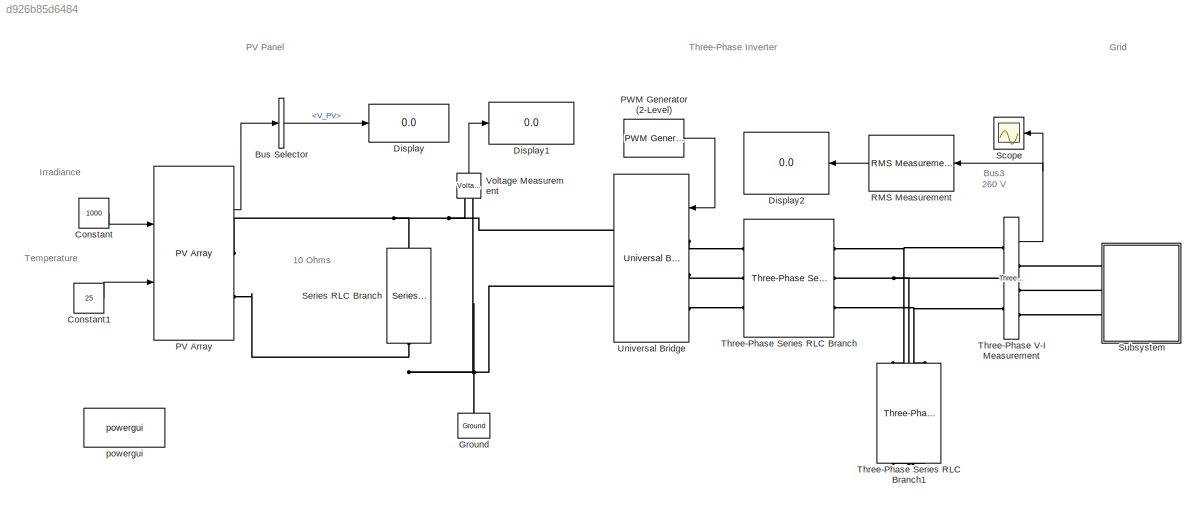
MODEL slx_d926b85d6484
KIND model
CONFIG AbsTol = auto
CONFIG EnableMultiTasking = off
CONFIG FixedStep = auto
CONFIG MaxStep = auto
CONFIG MinStep = auto
CONFIG RelTol = 1e-3
CONFIG SampleTimeConstraint = Unconstrained
CONFIG Solver = VariableStepAuto
CONFIG SolverName = VariableStepAuto
CONFIG StartTime = 0.0
CONFIG StopTime = 1
BLOCK [BusSelector] Bus Selector
  OutputSignals = V_PV
  Ports = [1, 1]
BLOCK [Constant] Constant
  Value = 1000
BLOCK [Constant] Constant1
  Value = 25
BLOCK [Display] Display
  Decimation = 1
  Ports = [1]
BLOCK [Display] Display1
  Decimation = 1
  NameLocation = top
  Ports = [1]
BLOCK [Display] Display2
  Decimation = 1
  Ports = [1]
BLOCK [Reference] Ground  REF=powerlib/Elements/Ground
  AttributesFormatString = \n
  NameLocation = left
  Ports = [0, 0, 0, 0, 0, 1]
  SourceBlock = powerlib/Elements/Ground
  SourceProductBaseCode = MT,PS
  SourceType = Ground
BLOCK [Reference] PV Array  REF=re_lib/Solar/PV Array
  Ports = [2, 1, 0, 0, 0, 0, 2]
  SourceBlock = re_lib/Solar/PV Array
  SourceProductBaseCode = PS
  SourceType = PV array
BLOCK [Reference] PWM Generator (2-Level)  REF=powerlib_meascontrol/Pulse & Signal
Generators/PWM Generator
(2-Level)
  NameLocation = top
  Ports = [0, 1]
  SourceBlock = powerlib_meascontrol/Pulse & Signal\nGenerators/PWM Generator\n(2-Level)
  SourceProductBaseCode = PS
  SourceType = PWM Generator (2-Level)
BLOCK [Reference] RMS Measurement  REF=eeRmsMeasurement/RMS
Measurement
  Ports = [1, 1]
  SourceBlock = eeRmsMeasurement/RMS\nMeasurement
  SourceProductBaseCode = PS
  SourceType = RMS Measurement
BLOCK [Scope] Scope
  Floating = off
  NameLocation = top
  NumInputPorts = 1
  Ports = [1]
  ScopeSpecificationString = Simulink.scopes.TimeScopeBlockCfg('CurrentConfiguration', extmgr.ConfigurationSet(extmgr.Configuration('Core','General UI',true),extmgr.Configuration('Core','Source UI',true),extmgr.Configuration('Sources','WiredSimulink',true),extmgr.Configuration('Visuals','Time Domain',true,'SerializedDisplays',{struct('MinYLimReal','-307.34398','MaxYLimReal','702.93303','YLabelReal','','MinYLimMag',' 0.00000',...<+1499ch>
BLOCK [Reference] Series RLC Branch  REF=powerlib/Elements/Series RLC Branch
  NameLocation = left
  Ports = [0, 0, 0, 0, 0, 1, 1]
  SourceBlock = powerlib/Elements/Series RLC Branch
  SourceProductBaseCode = PS
  SourceType = Series RLC Branch
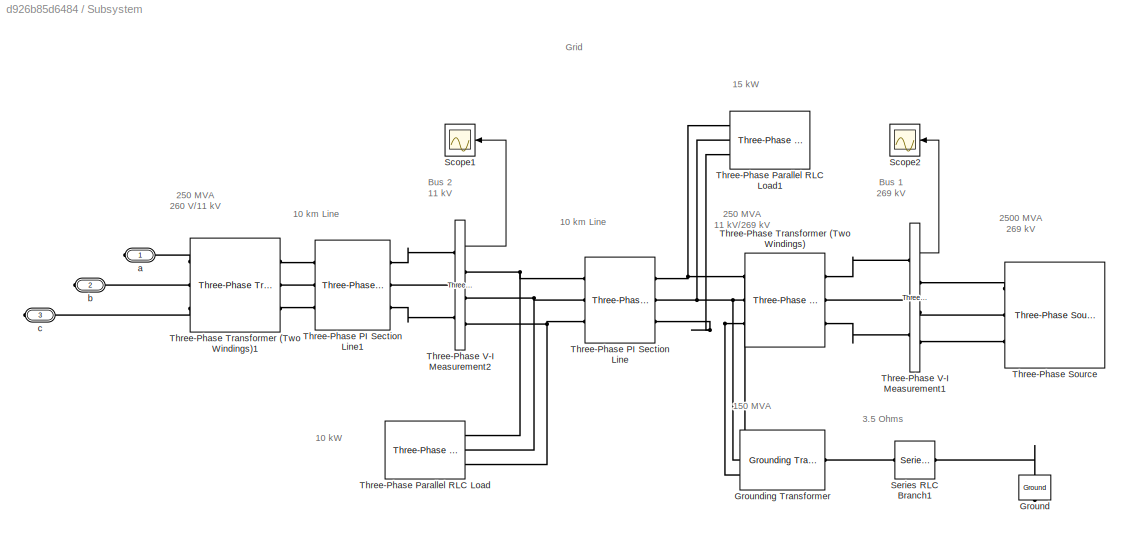
BLOCK [SubSystem] Subsystem
  Ports = [0, 0, 0, 0, 0, 0, 3]
  RequestExecContextInheritance = off
BLOCK [Reference] Subsystem/Ground  REF=powerlib/Elements/Ground
  AttributesFormatString = \n
  NameLocation = right
  Ports = [0, 0, 0, 0, 0, 1]
  SourceBlock = powerlib/Elements/Ground
  SourceProductBaseCode = MT,PS
  SourceType = Ground
BLOCK [Reference] Subsystem/Grounding Transformer   REF=powerlib/Elements/Grounding
Transformer 
  Ports = [0, 0, 0, 0, 0, 3, 1]
  SourceBlock = powerlib/Elements/Grounding\nTransformer
  SourceProductBaseCode = PS
  SourceType = Grounding Transformer
BLOCK [Scope] Subsystem/Scope1
  Floating = off
  NameLocation = top
  NumInputPorts = 1
  Ports = [1]
  ScopeSpecificationString = Simulink.scopes.TimeScopeBlockCfg('CurrentConfiguration', extmgr.ConfigurationSet(extmgr.Configuration('Core','General UI',true,'FigureColor',[1 1 1]),extmgr.Configuration('Core','Source UI',true),extmgr.Configuration('Sources','WiredSimulink',true,'DataLoggingVariableName','ScopeData1'),extmgr.Configuration('Visuals','Time Domain',true,'SerializedDisplays',{struct('MinYLimReal','-10985.64263','Ma...<+1915ch>
BLOCK [Scope] Subsystem/Scope2
  Floating = off
  NameLocation = top
  NumInputPorts = 1
  Ports = [1]
  ScopeSpecificationString = Simulink.scopes.TimeScopeBlockCfg('CurrentConfiguration', extmgr.ConfigurationSet(extmgr.Configuration('Core','General UI',true,'FigureColor',[1 1 1]),extmgr.Configuration('Core','Source UI',true),extmgr.Configuration('Sources','WiredSimulink',true,'DataLoggingVariableName','ScopeData2'),extmgr.Configuration('Visuals','Time Domain',true,'SerializedDisplays',{struct('MinYLimReal','-274385.19467','M...<+1924ch>
BLOCK [Reference] Subsystem/Series RLC Branch1  REF=powerlib/Elements/Series RLC Branch
  Ports = [0, 0, 0, 0, 0, 1, 1]
  SourceBlock = powerlib/Elements/Series RLC Branch
  SourceProductBaseCode = PS
  SourceType = Series RLC Branch
BLOCK [Reference] Subsystem/Three-Phase PI Section Line  REF=powerlib/Elements/Three-Phase
PI Section Line
  AttributesFormatString = \n
  Ports = [0, 0, 0, 0, 0, 3, 3]
  SourceBlock = powerlib/Elements/Three-Phase\nPI Section Line
  SourceProductBaseCode = PS
  SourceType = Three-Phase PI Section Line
BLOCK [Reference] Subsystem/Three-Phase PI Section Line1  REF=powerlib/Elements/Three-Phase
PI Section Line
  AttributesFormatString = \n
  Ports = [0, 0, 0, 0, 0, 3, 3]
  SourceBlock = powerlib/Elements/Three-Phase\nPI Section Line
  SourceProductBaseCode = PS
  SourceType = Three-Phase PI Section Line
BLOCK [Reference] Subsystem/Three-Phase Parallel RLC Load  REF=powerlib/Elements/Three-Phase
Parallel RLC Load
  AttributesFormatString = \n
  Ports = [0, 0, 0, 0, 0, 3]
  SourceBlock = powerlib/Elements/Three-Phase\nParallel RLC Load
  SourceProductBaseCode = PS
  SourceType = Three-Phase Parallel RLC Load
BLOCK [Reference] Subsystem/Three-Phase Parallel RLC Load1  REF=powerlib/Elements/Three-Phase
Parallel RLC Load
  AttributesFormatString = \n
  Ports = [0, 0, 0, 0, 0, 3]
  SourceBlock = powerlib/Elements/Three-Phase\nParallel RLC Load
  SourceProductBaseCode = PS
  SourceType = Three-Phase Parallel RLC Load
BLOCK [Reference] Subsystem/Three-Phase Source  REF=powerlib/Electrical
Sources/Three-Phase Source
  Ports = [0, 0, 0, 0, 0, 0, 3]
  SourceBlock = powerlib/Electrical\nSources/Three-Phase Source
  SourceProductBaseCode = PS
  SourceType = Three-Phase Source
BLOCK [Reference] Subsystem/Three-Phase Transformer (Two Windings)  REF=powerlib/Elements/Three-Phase
Transformer
(Two Windings)
  Ports = [0, 0, 0, 0, 0, 3, 3]
  SourceBlock = powerlib/Elements/Three-Phase\nTransformer\n(Two Windings)
  SourceProductBaseCode = PS
  SourceType = Three-Phase Transformer (Two Windings)
BLOCK [Reference] Subsystem/Three-Phase Transformer (Two Windings)1  REF=powerlib/Elements/Three-Phase
Transformer
(Two Windings)
  Ports = [0, 0, 0, 0, 0, 3, 3]
  SourceBlock = powerlib/Elements/Three-Phase\nTransformer\n(Two Windings)
  SourceProductBaseCode = PS
  SourceType = Three-Phase Transformer (Two Windings)
BLOCK [Reference] Subsystem/Three-Phase V-I Measurement1  REF=powerlib/Measurements/Three-Phase
V-I Measurement
  Ports = [0, 1, 0, 0, 0, 3, 3]
  SourceBlock = powerlib/Measurements/Three-Phase\nV-I Measurement
  SourceProductBaseCode = PS
  SourceType = Three-Phase VI Measurement
BLOCK [Reference] Subsystem/Three-Phase V-I Measurement2  REF=powerlib/Measurements/Three-Phase
V-I Measurement
  Ports = [0, 1, 0, 0, 0, 3, 3]
  SourceBlock = powerlib/Measurements/Three-Phase\nV-I Measurement
  SourceProductBaseCode = PS
  SourceType = Three-Phase VI Measurement
BLOCK [PMIOPort] Subsystem/a
  Side = Right
BLOCK [PMIOPort] Subsystem/b
  Port = 2
  Side = Right
BLOCK [PMIOPort] Subsystem/c
  Port = 3
  Side = Right
BLOCK [Reference] Three-Phase Series RLC Branch  REF=powerlib/Elements/Three-Phase
Series RLC Branch
  AttributesFormatString = \n
  Ports = [0, 0, 0, 0, 0, 3, 3]
  SourceBlock = powerlib/Elements/Three-Phase\nSeries RLC Branch
  SourceProductBaseCode = PS
  SourceType = Three-Phase Series RLC Branch
BLOCK [Reference] Three-Phase Series RLC Branch1  REF=powerlib/Elements/Three-Phase
Series RLC Branch
  AttributesFormatString = \n
  NameLocation = left
  Ports = [0, 0, 0, 0, 0, 3, 3]
  SourceBlock = powerlib/Elements/Three-Phase\nSeries RLC Branch
  SourceProductBaseCode = PS
  SourceType = Three-Phase Series RLC Branch
BLOCK [Reference] Three-Phase V-I Measurement  REF=powerlib/Measurements/Three-Phase
V-I Measurement
  Ports = [0, 1, 0, 0, 0, 3, 3]
  SourceBlock = powerlib/Measurements/Three-Phase\nV-I Measurement
  SourceProductBaseCode = PS
  SourceType = Three-Phase VI Measurement
BLOCK [Reference] Universal Bridge  REF=powerlib/Power
Electronics/Universal Bridge
  Ports = [1, 0, 0, 0, 0, 3, 2]
  SourceBlock = powerlib/Power\nElectronics/Universal Bridge
  SourceProductBaseCode = PS
  SourceType = Universal Bridge
BLOCK [Reference] Voltage Measurement  REF=powerlib/Measurements/Voltage Measurement
  NameLocation = left
  Ports = [0, 1, 0, 0, 0, 2]
  SourceBlock = powerlib/Measurements/Voltage Measurement
  SourceProductBaseCode = PS
  SourceType = Voltage Measurement
  UserDataPersistent = on
BLOCK [Reference] powergui  REF=powerlib/powergui
  Ports = []
  Priority = 1
  SourceBlock = powerlib/powergui
  SourceProductBaseCode = PS
  SourceType = PSB option menu block
ANNOTATION (root): 10 Ohms
ANNOTATION (root): Bus3 260 V
ANNOTATION (root): Grid
ANNOTATION (root): Irradiance
ANNOTATION (root): Temperature
ANNOTATION (root): PV Panel
ANNOTATION (root): Three-Phase Inverter
ANNOTATION Subsystem: 10 kW
ANNOTATION Subsystem: 15 kW
ANNOTATION Subsystem: 250 MVA 11 kV/269 kV
ANNOTATION Subsystem: 250 MVA 260 V/11 kV
ANNOTATION Subsystem: 2500 MVA 269 kV
ANNOTATION Subsystem: Bus 1 269 kV
ANNOTATION Subsystem: Bus 2 11 kV
ANNOTATION Subsystem: Grid
ANNOTATION Subsystem: 10 km Line
ANNOTATION Subsystem: 150 MVA
ANNOTATION Subsystem: 3.5 Ohms
LINE Bus Selector:1 -> Display:1
LINE Constant1:1 -> PV Array:2
LINE Constant:1 -> PV Array:1
LINE PV Array:1 -> Bus Selector:1
LINE PWM Generator (2-Level):1 -> Universal Bridge:1
LINE RMS Measurement:1 -> Display2:1
LINE Subsystem/Three-Phase V-I Measurement1:1 -> Subsystem/Scope2:1
LINE Subsystem/Three-Phase V-I Measurement2:1 -> Subsystem/Scope1:1
NET Three-Phase V-I Measurement:1 -> RMS Measurement:1, Scope:1
LINE Voltage Measurement:1 -> Display1:1
PNET net1: Ground:LConn1 -- PV Array:RConn2 -- Series RLC Branch:RConn1 -- Universal Bridge:RConn2 -- Voltage Measurement:LConn2
PNET net2: PV Array:RConn1 -- Series RLC Branch:LConn1 -- Universal Bridge:RConn1 -- Voltage Measurement:LConn1
PLINE Subsystem/Ground:LConn1 -- Subsystem/Series RLC Branch1:RConn1
PNET net3: Subsystem/Grounding Transformer :LConn1 -- Subsystem/Three-Phase PI Section Line:LConn1 -- Subsystem/Three-Phase Parallel RLC Load1:LConn1 -- Subsystem/Three-Phase Transformer (Two Windings):RConn1
PNET net4: Subsystem/Grounding Transformer :LConn2 -- Subsystem/Three-Phase PI Section Line:LConn2 -- Subsystem/Three-Phase Parallel RLC Load1:LConn2 -- Subsystem/Three-Phase Transformer (Two Windings):RConn2
PNET net5: Subsystem/Grounding Transformer :LConn3 -- Subsystem/Three-Phase PI Section Line:LConn3 -- Subsystem/Three-Phase Parallel RLC Load1:LConn3 -- Subsystem/Three-Phase Transformer (Two Windings):RConn3
PLINE Subsystem/Grounding Transformer :RConn1 -- Subsystem/Series RLC Branch1:LConn1
PLINE Subsystem/Three-Phase PI Section Line1:LConn1 -- Subsystem/Three-Phase V-I Measurement2:LConn1
PLINE Subsystem/Three-Phase PI Section Line1:LConn2 -- Subsystem/Three-Phase V-I Measurement2:LConn2
PLINE Subsystem/Three-Phase PI Section Line1:LConn3 -- Subsystem/Three-Phase V-I Measurement2:LConn3
PLINE Subsystem/Three-Phase PI Section Line1:RConn1 -- Subsystem/Three-Phase Transformer (Two Windings)1:LConn1
PLINE Subsystem/Three-Phase PI Section Line1:RConn2 -- Subsystem/Three-Phase Transformer (Two Windings)1:LConn2
PLINE Subsystem/Three-Phase PI Section Line1:RConn3 -- Subsystem/Three-Phase Transformer (Two Windings)1:LConn3
PNET net6: Subsystem/Three-Phase PI Section Line:RConn1 -- Subsystem/Three-Phase Parallel RLC Load:LConn1 -- Subsystem/Three-Phase V-I Measurement2:RConn1
PNET net7: Subsystem/Three-Phase PI Section Line:RConn2 -- Subsystem/Three-Phase Parallel RLC Load:LConn2 -- Subsystem/Three-Phase V-I Measurement2:RConn2
PNET net8: Subsystem/Three-Phase PI Section Line:RConn3 -- Subsystem/Three-Phase Parallel RLC Load:LConn3 -- Subsystem/Three-Phase V-I Measurement2:RConn3
PLINE Subsystem/Three-Phase Source:RConn1 -- Subsystem/Three-Phase V-I Measurement1:RConn1
PLINE Subsystem/Three-Phase Source:RConn2 -- Subsystem/Three-Phase V-I Measurement1:RConn2
PLINE Subsystem/Three-Phase Source:RConn3 -- Subsystem/Three-Phase V-I Measurement1:RConn3
PLINE Subsystem/Three-Phase Transformer (Two Windings)1:RConn1 -- Subsystem/a:RConn1
PLINE Subsystem/Three-Phase Transformer (Two Windings)1:RConn2 -- Subsystem/b:RConn1
PLINE Subsystem/Three-Phase Transformer (Two Windings)1:RConn3 -- Subsystem/c:RConn1
PLINE Subsystem/Three-Phase Transformer (Two Windings):LConn1 -- Subsystem/Three-Phase V-I Measurement1:LConn1
PLINE Subsystem/Three-Phase Transformer (Two Windings):LConn2 -- Subsystem/Three-Phase V-I Measurement1:LConn2
PLINE Subsystem/Three-Phase Transformer (Two Windings):LConn3 -- Subsystem/Three-Phase V-I Measurement1:LConn3
PLINE Subsystem:RConn1 -- Three-Phase V-I Measurement:RConn1
PLINE Subsystem:RConn2 -- Three-Phase V-I Measurement:RConn2
PLINE Subsystem:RConn3 -- Three-Phase V-I Measurement:RConn3
PNET net9: Three-Phase Series RLC Branch1:LConn1 -- Three-Phase Series RLC Branch:RConn1 -- Three-Phase V-I Measurement:LConn1
PNET net10: Three-Phase Series RLC Branch1:LConn2 -- Three-Phase Series RLC Branch:RConn2 -- Three-Phase V-I Measurement:LConn2
PNET net11: Three-Phase Series RLC Branch1:LConn3 -- Three-Phase Series RLC Branch:RConn3 -- Three-Phase V-I Measurement:LConn3
PNET net12: Three-Phase Series RLC Branch1:RConn1 -- Three-Phase Series RLC Branch1:RConn2 -- Three-Phase Series RLC Branch1:RConn3
PLINE Three-Phase Series RLC Branch:LConn1 -- Universal Bridge:LConn1
PLINE Three-Phase Series RLC Branch:LConn2 -- Universal Bridge:LConn2
PLINE Three-Phase Series RLC Branch:LConn3 -- Universal Bridge:LConn3
note: NET lines group one-source signal fan-out (src -> all destinations, sorted); 1:1 wires keep LINE; PNET lines group multi-terminal physical nets as a canonical sorted terminal list (undirected conserving connections); 2-terminal nets keep the pairwise PLINE form
